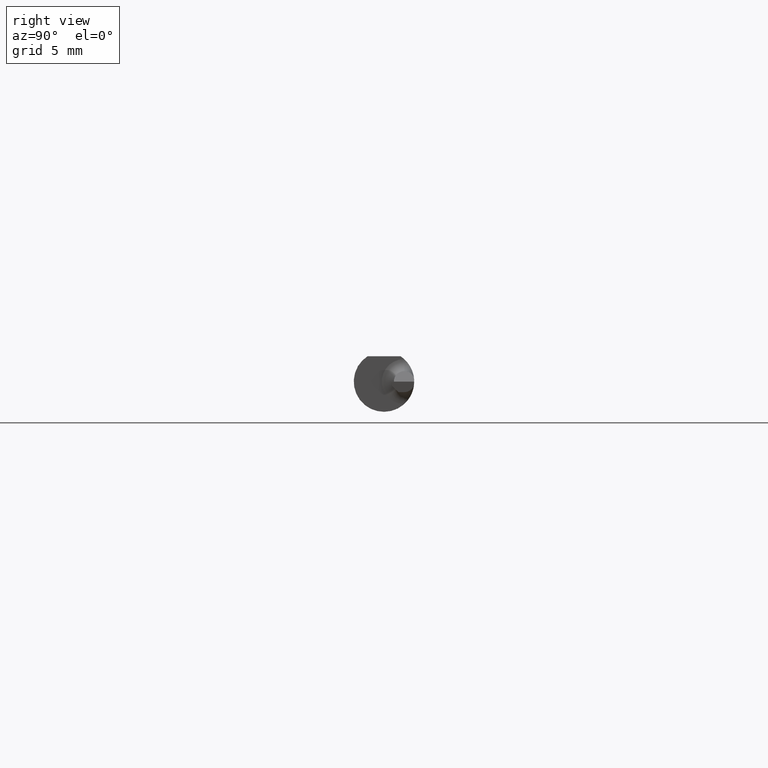
[diagram: clean part render]
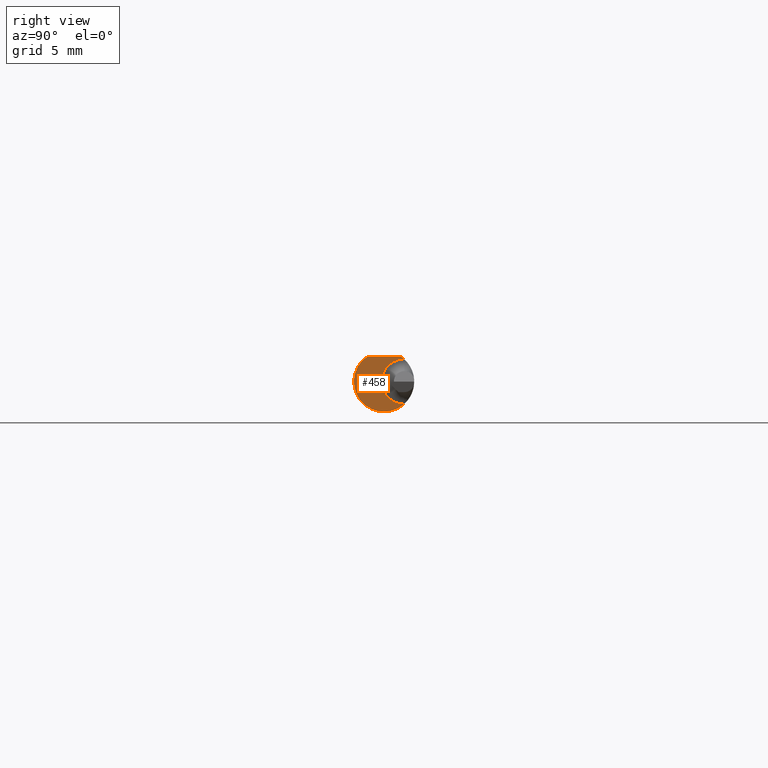
[diagram: same view with one face highlighted and labeled with its STEP entity id]
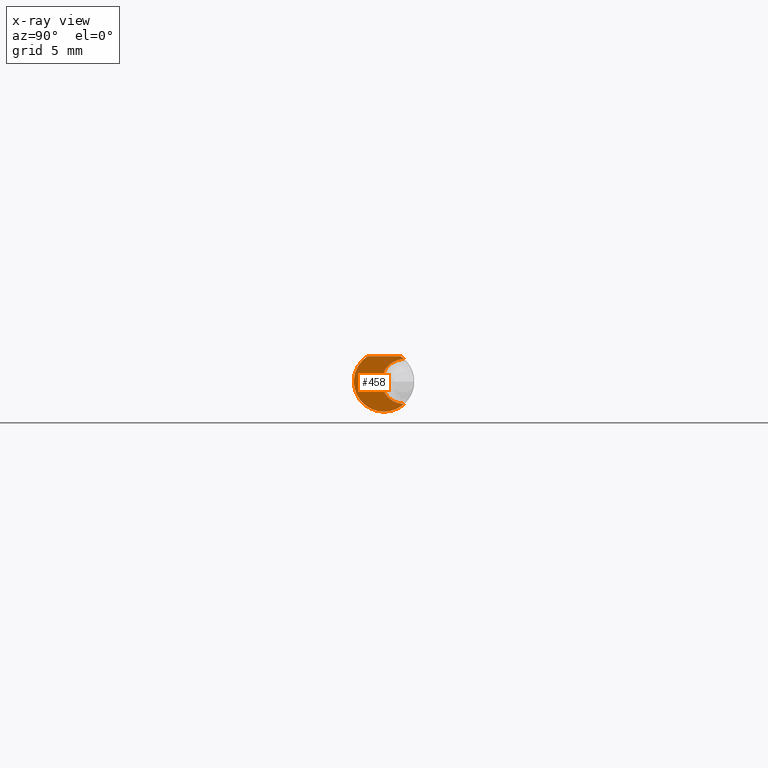
[diagram: x-ray of the same camera — body ghosted, the highlighted face saturated]
A machine part, right view. The second image highlights one B-rep face of the part: STEP entity #458.
The next image is the same camera in x-ray: the body ghosted, the highlighted face saturated — about 0% of this face is hidden behind the body in this view.
In plain terms, the highlighted planar face has unit normal (-1, 0, -0).
Its self-contained STEP definition (entity closure, byte-faithful):
#1 = CIRCLE ( 'NONE', #220, 0.06235000000000000264 ) ;
#44 = ORIENTED_EDGE ( 'NONE', *, *, #81, .F. ) ;
#47 = ORIENTED_EDGE ( 'NONE', *, *, #511, .F. ) ;
#73 = DIRECTION ( 'NONE',  ( -0.000000000000000000, 0.000000000000000000, 1.000000000000000000 ) ) ;
#77 = DIRECTION ( 'NONE',  ( 0.000000000000000000, 0.000000000000000000, 1.000000000000000000 ) ) ;
#80 = FACE_OUTER_BOUND ( 'NONE', #167, .T. ) ;
#81 = EDGE_CURVE ( 'NONE', #250, #493, #1, .T. ) ;
#89 = AXIS2_PLACEMENT_3D ( 'NONE', #293, #184, #73 ) ;
#101 = CARTESIAN_POINT ( 'NONE',  ( 1.310000000000000053, -0.03386738844380023788, 0.05235000000000000070 ) ) ;
#121 = CARTESIAN_POINT ( 'NONE',  ( 1.310000000000000053, 0.000000000000000000, 0.000000000000000000 ) ) ;
#135 = DIRECTION ( 'NONE',  ( -1.000000000000000000, -0.000000000000000000, -0.000000000000000000 ) ) ;
#167 = EDGE_LOOP ( 'NONE', ( #672, #44, #622, #47 ) ) ;
#180 = CIRCLE ( 'NONE', #620, 0.06235000000000000264 ) ;
#184 = DIRECTION ( 'NONE',  ( -1.000000000000000000, 0.000000000000000000, -0.000000000000000000 ) ) ;
#215 = LINE ( 'NONE', #227, #321 ) ;
#220 = AXIS2_PLACEMENT_3D ( 'NONE', #121, #303, #345 ) ;
#227 = CARTESIAN_POINT ( 'NONE',  ( 1.310000000000000053, 0.1123499999999999915, 0.05234999999999998682 ) ) ;
#237 = VERTEX_POINT ( 'NONE', #429 ) ;
#250 = VERTEX_POINT ( 'NONE', #270 ) ;
#270 = CARTESIAN_POINT ( 'NONE',  ( 1.310000000000000053, 0.03386738844375224156, 0.05235000000000000070 ) ) ;
#293 = CARTESIAN_POINT ( 'NONE',  ( 1.310000000000000053, -0.004650000000000023039, 0.000000000000000000 ) ) ;
#301 = PLANE ( 'NONE',  #89 ) ;
#303 = DIRECTION ( 'NONE',  ( -1.000000000000000000, -0.000000000000000000, -0.000000000000000000 ) ) ;
#321 = VECTOR ( 'NONE', #433, 39.37007874015748143 ) ;
#341 = EDGE_CURVE ( 'NONE', #684, #250, #215, .T. ) ;
#345 = DIRECTION ( 'NONE',  ( 0.000000000000000000, 0.000000000000000000, 1.000000000000000000 ) ) ;
#346 = DIRECTION ( 'NONE',  ( 0.000000000000000000, 0.000000000000000000, 1.000000000000000000 ) ) ;
#425 = AXIS2_PLACEMENT_3D ( 'NONE', #649, #601, #77 ) ;
#429 = CARTESIAN_POINT ( 'NONE',  ( 1.310000000000000053, 0.04137261904761901921, -0.04664578108618818580 ) ) ;
#433 = DIRECTION ( 'NONE',  ( 0.000000000000000000, 1.000000000000000000, -7.598598113218357399E-17 ) ) ;
#458 = ADVANCED_FACE ( 'NONE', ( #80 ), #301, .F. ) ;
#493 = VERTEX_POINT ( 'NONE', #551 ) ;
#511 = EDGE_CURVE ( 'NONE', #237, #684, #180, .T. ) ;
#551 = CARTESIAN_POINT ( 'NONE',  ( 1.310000000000000053, 0.04137261904761901921, 0.04664578108618818580 ) ) ;
#553 = CARTESIAN_POINT ( 'NONE',  ( 1.310000000000000053, 0.000000000000000000, 0.000000000000000000 ) ) ;
#601 = DIRECTION ( 'NONE',  ( -1.000000000000000000, -0.000000000000000000, -0.000000000000000000 ) ) ;
#620 = AXIS2_PLACEMENT_3D ( 'NONE', #553, #135, #346 ) ;
#622 = ORIENTED_EDGE ( 'NONE', *, *, #341, .F. ) ;
#628 = EDGE_CURVE ( 'NONE', #237, #493, #629, .T. ) ;
#629 = CIRCLE ( 'NONE', #425, 0.04665000000000002478 ) ;
#649 = CARTESIAN_POINT ( 'NONE',  ( 1.310000000000000053, 0.04200000000000000955, 0.000000000000000000 ) ) ;
#672 = ORIENTED_EDGE ( 'NONE', *, *, #628, .T. ) ;
#684 = VERTEX_POINT ( 'NONE', #101 ) ;